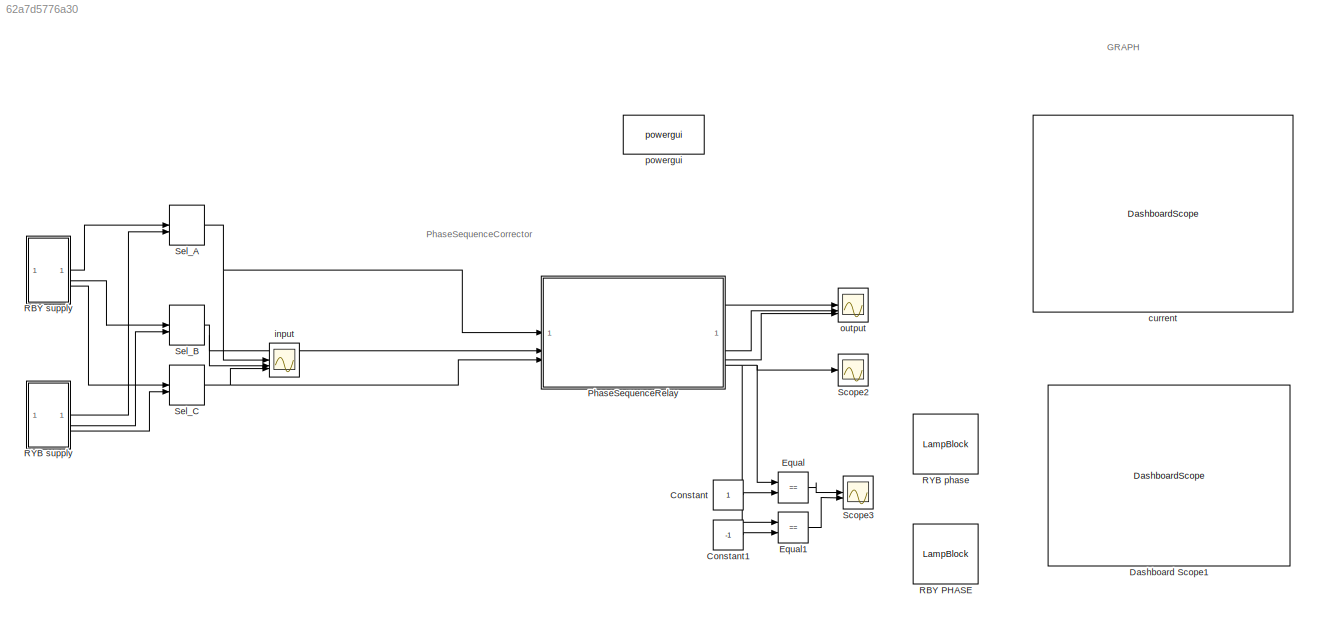
MODEL slx_62a7d5776a30
KIND model
CONFIG AbsTol = auto
CONFIG EnableMultiTasking = off
CONFIG FixedStep = auto
CONFIG MaxStep = auto
CONFIG MinStep = auto
CONFIG RelTol = 1e-3
CONFIG SampleTimeConstraint = Unconstrained
CONFIG SolverName = VariableStepAuto
CONFIG StartTime = 0.0
CONFIG StopTime = 1
BLOCK [Constant] Constant
BLOCK [Constant] Constant1
  Value = -1
BLOCK [DashboardScope] Dashboard Scope1
BLOCK [RelationalOperator] Equal
  InputSameDT = off
  Operator = ==
  OutDataTypeStr = boolean
  RndMeth = Simplest
BLOCK [RelationalOperator] Equal1
  InputSameDT = off
  Operator = ==
  OutDataTypeStr = boolean
  RndMeth = Simplest
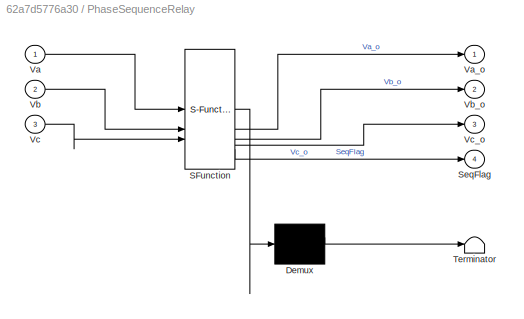
BLOCK [SubSystem] PhaseSequenceRelay
  ErrorFcn = Stateflow.Translate.translate
  PermitHierarchicalResolution = ExplicitOnly
  SFBlockType = MATLAB Function
  TreatAsAtomicUnit = on
BLOCK [Demux] PhaseSequenceRelay/ Demux 
  Outputs = 1
BLOCK [S-Function] PhaseSequenceRelay/ SFunction 
  EnableBusSupport = on
  FunctionName = sf_sfun
  PortCounts = [3 5]
  SFcnIsStateOwnerBlock = off
  SFunctionDeploymentMode = off
  Tag = Stateflow S-Function 2
BLOCK [Terminator] PhaseSequenceRelay/ Terminator 
BLOCK [Outport] PhaseSequenceRelay/SeqFlag
  Port = 4
BLOCK [Inport] PhaseSequenceRelay/Va
BLOCK [Outport] PhaseSequenceRelay/Va_o
BLOCK [Inport] PhaseSequenceRelay/Vb
  Port = 2
BLOCK [Outport] PhaseSequenceRelay/Vb_o
  Port = 2
BLOCK [Inport] PhaseSequenceRelay/Vc
  Port = 3
BLOCK [Outport] PhaseSequenceRelay/Vc_o
  Port = 3
BLOCK [LampBlock] RBY PHASE
  LabelPosition = Hide
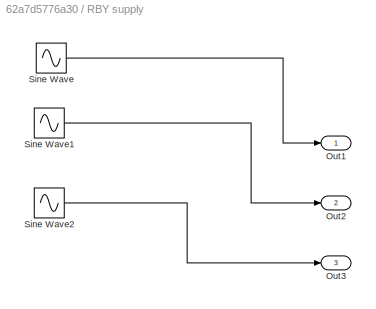
BLOCK [SubSystem] RBY supply
BLOCK [Outport] RBY supply/Out1
BLOCK [Outport] RBY supply/Out2
  Port = 2
BLOCK [Outport] RBY supply/Out3
  Port = 3
BLOCK [Sin] RBY supply/Sine Wave
  Amplitude = 311.111
  Frequency = 50
  SampleTime = 0
BLOCK [Sin] RBY supply/Sine Wave1
  Amplitude = 311.11
  Frequency = 50
  Phase = 120
  SampleTime = 0
BLOCK [Sin] RBY supply/Sine Wave2
  Amplitude = 311.111
  Frequency = 50
  Phase = -120
  SampleTime = 0
BLOCK [LampBlock] RYB phase
  LabelPosition = Hide
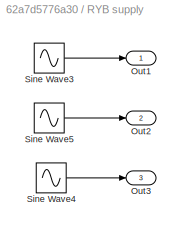
BLOCK [SubSystem] RYB supply
BLOCK [Outport] RYB supply/Out1
BLOCK [Outport] RYB supply/Out2
  Port = 2
BLOCK [Outport] RYB supply/Out3
  Port = 3
BLOCK [Sin] RYB supply/Sine Wave3
  Amplitude = 311.111
  Frequency = 50
  SampleTime = 0
BLOCK [Sin] RYB supply/Sine Wave4
  Amplitude = 311.11
  Frequency = 50
  Phase = 120
  SampleTime = 0
BLOCK [Sin] RYB supply/Sine Wave5
  Amplitude = 311.111
  Frequency = 50
  Phase = -120
  SampleTime = 0
BLOCK [Scope] Scope2
  Floating = off
  NumInputPorts = 1
  ScopeSpecificationString = Simulink.scopes.TimeScopeBlockCfg('CurrentConfiguration', extmgr.ConfigurationSet(extmgr.Configuration('Core','General UI',true),extmgr.Configuration('Core','Source UI',true),extmgr.Configuration('Sources','WiredSimulink',true,'DataLoggingVariableName','ScopeData4'),extmgr.Configuration('Visuals','Time Domain',true,'SerializedDisplays',{struct('MinYLimReal','-1.25','MaxYLimReal','1.25','YLabelReal...<+1514ch>
BLOCK [Scope] Scope3
  Floating = off
  NumInputPorts = 2
  ScopeSpecificationString = Simulink.scopes.TimeScopeBlockCfg('CurrentConfiguration', extmgr.ConfigurationSet(extmgr.Configuration('Core','General UI',true),extmgr.Configuration('Core','Source UI',true),extmgr.Configuration('Sources','WiredSimulink',true),extmgr.Configuration('Visuals','Time Domain',true,'SerializedDisplays',{struct('MinYLimReal','-0.125','MaxYLimReal','1.125','YLabelReal','','MinYLimMag','0.00000','MaxYLimM...<+1469ch>
BLOCK [ManualSwitch] Sel_A
BLOCK [ManualSwitch] Sel_B
  CurrentSetting = 0
BLOCK [ManualSwitch] Sel_C
  CurrentSetting = 0
BLOCK [DashboardScope] current
BLOCK [Scope] input
  Floating = off
  NumInputPorts = 3
  ScopeSpecificationString = Simulink.scopes.TimeScopeBlockCfg('CurrentConfiguration', extmgr.ConfigurationSet(extmgr.Configuration('Core','General UI',true),extmgr.Configuration('Core','Source UI',true),extmgr.Configuration('Sources','WiredSimulink',true,'DataLoggingVariableName','ScopeData3'),extmgr.Configuration('Visuals','Time Domain',true,'SerializedDisplays',{struct('MinYLimReal','-387.10146','MaxYLimReal','387.10246','...<+1615ch>
BLOCK [Scope] output
  Floating = off
  NumInputPorts = 3
  ScopeSpecificationString = Simulink.scopes.TimeScopeBlockCfg('CurrentConfiguration', extmgr.ConfigurationSet(extmgr.Configuration('Core','General UI',true),extmgr.Configuration('Core','Source UI',true),extmgr.Configuration('Sources','WiredSimulink',true,'DataLoggingVariableName','ScopeData2'),extmgr.Configuration('Visuals','Time Domain',true,'SerializedDisplays',{struct('MinYLimReal','-388.88189','MaxYLimReal','388.85752','...<+1621ch>
BLOCK [Reference] powergui  REF=sps_lib/powergui
  LibrarySourceBlock = sps_lib/powergui
  Priority = 1
  SourceBlock = sps_lib/powergui
  SourceType = PSB option menu block
ANNOTATION (root): GRAPH
ANNOTATION (root): PhaseSequenceCorrector
LINE Constant1:1 -> Equal1:2
LINE Constant:1 -> Equal:2
LINE Equal1:1 -> Scope3:2
LINE Equal:1 -> Scope3:1
LINE PhaseSequenceRelay:1 -> output:1
LINE PhaseSequenceRelay:2 -> output:2
LINE PhaseSequenceRelay:3 -> output:3
NET PhaseSequenceRelay:4 -> Equal1:1, Equal:1, Scope2:1
LINE RBY supply/Sine Wave1:1 -> RBY supply/Out2:1
LINE RBY supply/Sine Wave2:1 -> RBY supply/Out3:1
LINE RBY supply/Sine Wave:1 -> RBY supply/Out1:1
LINE RBY supply:1 -> Sel_A:1
LINE RBY supply:2 -> Sel_B:1
LINE RBY supply:3 -> Sel_C:1
LINE RYB supply/Sine Wave3:1 -> RYB supply/Out1:1
LINE RYB supply/Sine Wave4:1 -> RYB supply/Out3:1
LINE RYB supply/Sine Wave5:1 -> RYB supply/Out2:1
LINE RYB supply:1 -> Sel_A:2
LINE RYB supply:2 -> Sel_B:2
LINE RYB supply:3 -> Sel_C:2
NET Sel_A:1 -> PhaseSequenceRelay:1, input:1
NET Sel_B:1 -> PhaseSequenceRelay:2, input:2
NET Sel_C:1 -> PhaseSequenceRelay:3, input:3
note: NET lines group one-source signal fan-out (src -> all destinations, sorted); 1:1 wires keep LINE
CHART PhaseSequenceRelay states=1 transitions=1
  STATE_LABEL 'eML_blk_kernel()'
  STATE_LABEL 'SCRIPT:\nfunction [Va_o, Vb_o, Vc_o, SeqFlag] = PhaseSequenceRelay(Va, Vb, Vc)\n%#codegen\n% Detects 3-phase sequence (ABC or ACB) and corrects to ABC.\n% \n% Inputs:\n%   Va, Vb, Vc  - Instantaneous phase voltages (or currents)\n% Outputs:\n%   Va_o, Vb_o, Vc_o - Corrected 3-phase signals (always ABC order)\n%   SeqFlag          - +1 for ABC, -1 for ACB\n\npersistent theta_prev dtheta_filt init\nif isempty(i...<+909ch>'
CHART  states=0 transitions=0
